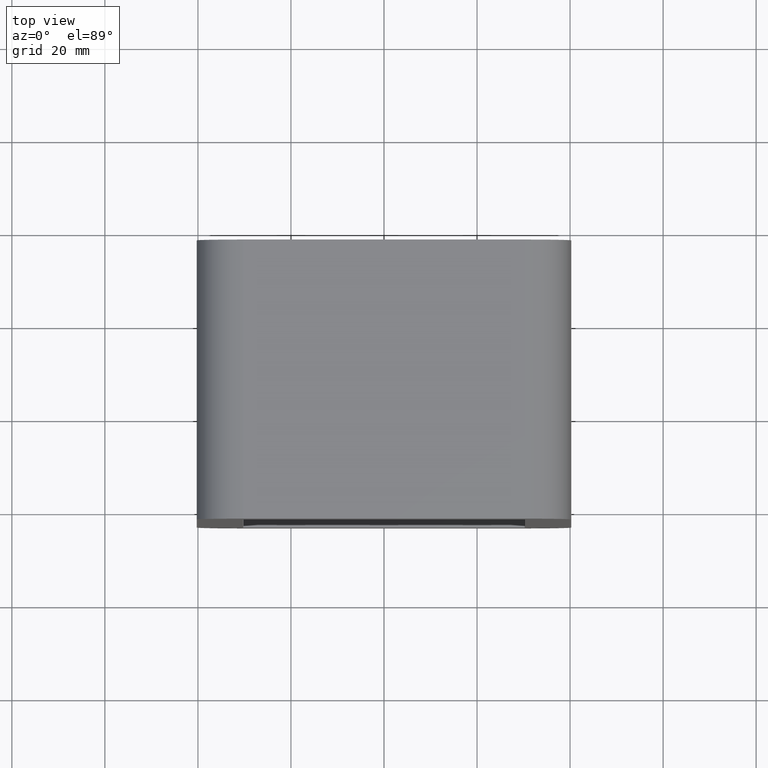
[diagram: clean part render]
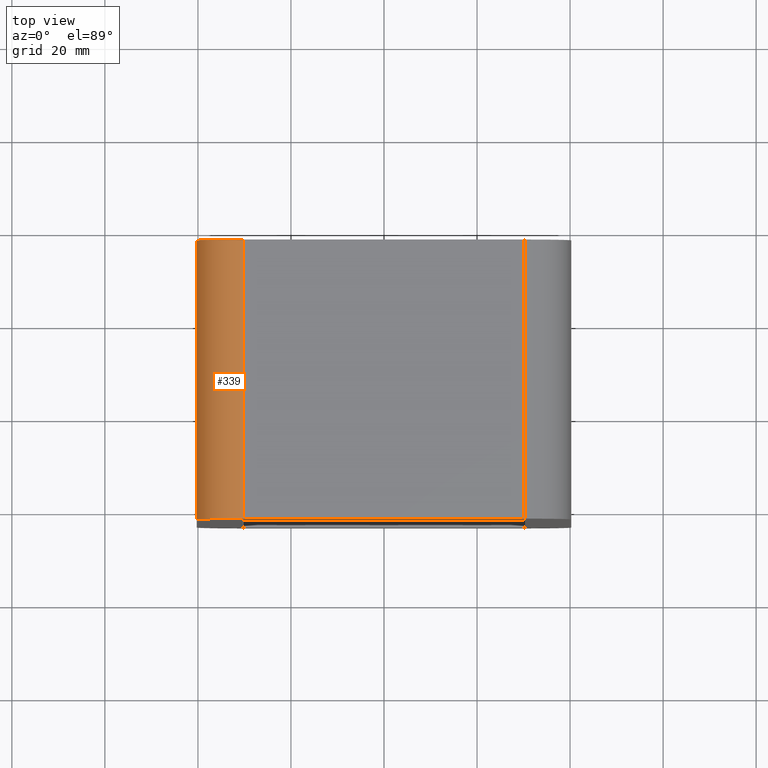
[diagram: same view with one face highlighted and labeled with its STEP entity id]
A machine part, top view. The second image highlights one B-rep face of the part: STEP entity #339.
In plain terms, the highlighted cylindrical surface (partial cylindrical patch) has radius 10 mm, axis along (0, 1, 0).
Its self-contained STEP definition (entity closure, byte-faithful):
#133=CARTESIAN_POINT('',(-30.250000000000004,-3.0,60.500000000000007));
#134=VERTEX_POINT('',#133);
#141=CARTESIAN_POINT('',(-40.25,-3.0,50.500000000000007));
#142=VERTEX_POINT('',#141);
#143=CARTESIAN_POINT('',(-30.250000000000004,-3.0,50.500000000000007));
#144=DIRECTION('',(0.0,1.0,0.0));
#145=DIRECTION('',(-0.707106781186547,0.0,0.707106781186547));
#146=AXIS2_PLACEMENT_3D('',#143,#144,#145);
#147=CIRCLE('',#146,9.999999999999998);
#148=EDGE_CURVE('',#142,#134,#147,.T.);
#298=CARTESIAN_POINT('',(-40.25,57.0,50.500000000000007));
#299=VERTEX_POINT('',#298);
#300=CARTESIAN_POINT('',(-40.25,57.0,50.500000000000007));
#301=DIRECTION('',(0.0,-1.0,0.0));
#302=VECTOR('',#301,60.0);
#303=LINE('',#300,#302);
#304=EDGE_CURVE('',#299,#142,#303,.T.);
#315=CARTESIAN_POINT('',(-30.250000000000004,0.0,50.500000000000007));
#316=DIRECTION('',(0.0,1.0,0.0));
#317=DIRECTION('',(-0.707106781186547,0.0,0.707106781186547));
#318=AXIS2_PLACEMENT_3D('',#315,#316,#317);
#319=CYLINDRICAL_SURFACE('',#318,10.0);
#320=CARTESIAN_POINT('',(-30.250000000000004,57.0,60.500000000000007));
#321=VERTEX_POINT('',#320);
#322=CARTESIAN_POINT('',(-30.250000000000004,57.0,50.500000000000007));
#323=DIRECTION('',(0.0,-1.0,0.0));
#324=DIRECTION('',(-0.707106781186547,0.0,0.707106781186547));
#325=AXIS2_PLACEMENT_3D('',#322,#323,#324);
#326=CIRCLE('',#325,9.999999999999998);
#327=EDGE_CURVE('',#321,#299,#326,.T.);
#328=ORIENTED_EDGE('',*,*,#327,.T.);
#329=ORIENTED_EDGE('',*,*,#304,.T.);
#330=ORIENTED_EDGE('',*,*,#148,.T.);
#331=CARTESIAN_POINT('',(-30.250000000000004,-3.0,60.500000000000007));
#332=DIRECTION('',(0.0,1.0,0.0));
#333=VECTOR('',#332,60.0);
#334=LINE('',#331,#333);
#335=EDGE_CURVE('',#134,#321,#334,.T.);
#336=ORIENTED_EDGE('',*,*,#335,.T.);
#337=EDGE_LOOP('',(#328,#329,#330,#336));
#338=FACE_OUTER_BOUND('',#337,.T.);
#339=ADVANCED_FACE('',(#338),#319,.T.);